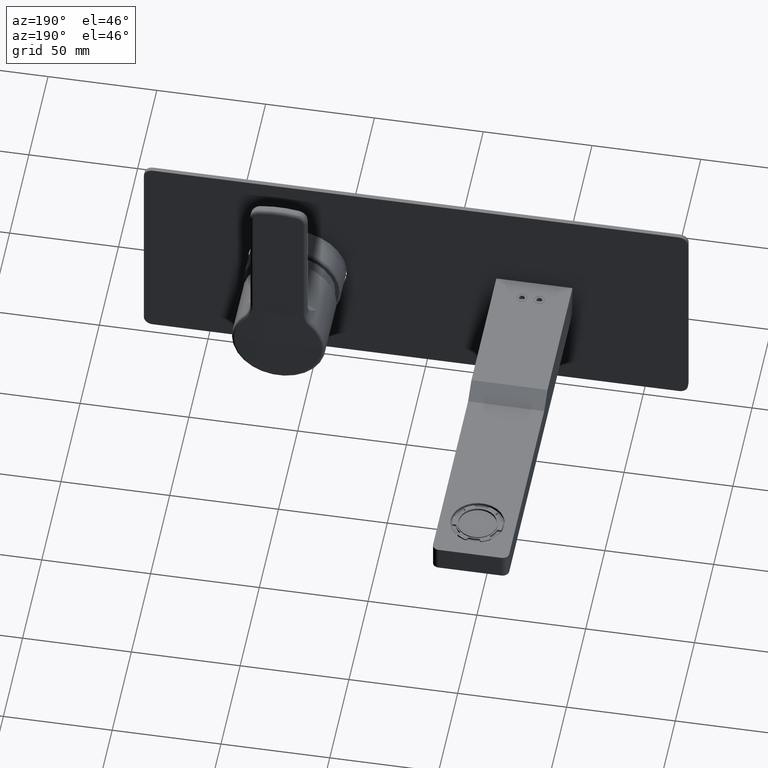
[diagram: clean part render]
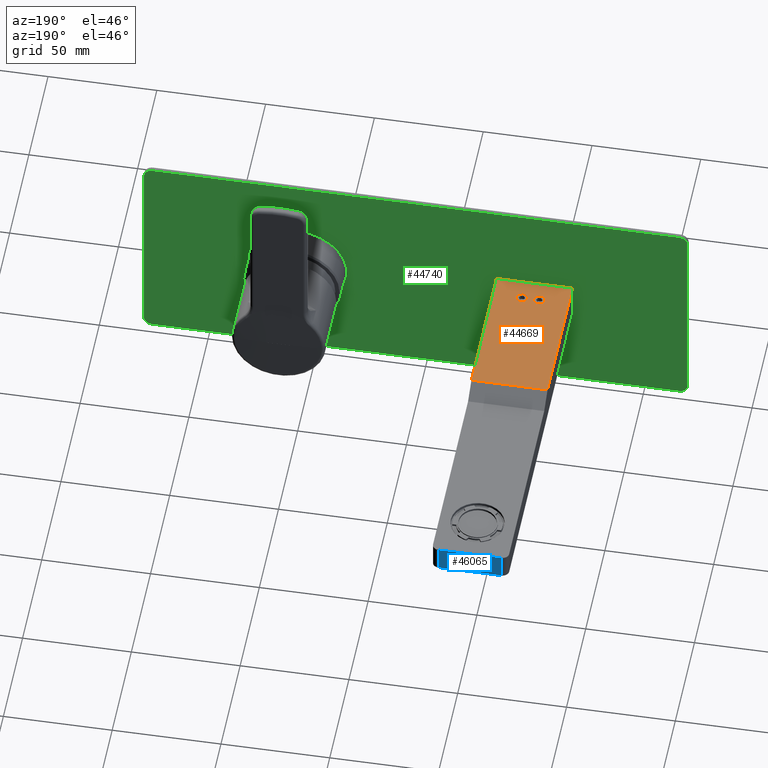
[diagram: same view with three faces highlighted in distinct colors, each labeled with its STEP entity id]
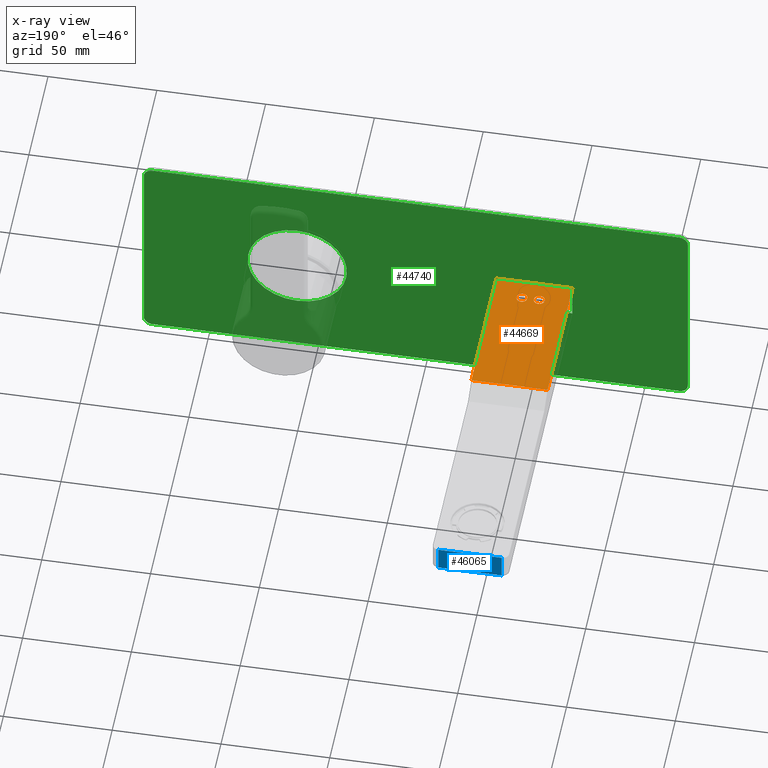
[diagram: x-ray of the same camera — body ghosted, the three highlighted faces saturated]
A machine part, auxiliary view with three faces highlighted in distinct colors.
The next image is the same camera in x-ray (body ghosted, the three faces saturated) — at least one of them is partly hidden behind the body in this view.
Their STEP definitions:

[orange] entity #44669 — the highlighted planar face has unit normal (0, 0, -1).
#42386=DIRECTION('',(0.E0,1.E0,0.E0));
#42387=VECTOR('',#42386,6.5E1);
#42388=CARTESIAN_POINT('',(-1.75E1,5.E1,8.25E0));
#42389=LINE('',#42388,#42387);
#42390=DIRECTION('',(1.E0,0.E0,0.E0));
#42391=VECTOR('',#42390,3.5E1);
#42392=CARTESIAN_POINT('',(-1.75E1,1.15E2,8.25E0));
#42393=LINE('',#42392,#42391);
#42394=DIRECTION('',(0.E0,-1.E0,0.E0));
#42395=VECTOR('',#42394,6.5E1);
#42396=CARTESIAN_POINT('',(1.75E1,1.15E2,8.25E0));
#42397=LINE('',#42396,#42395);
#42398=CARTESIAN_POINT('',(4.E0,6.E1,8.25E0));
#42399=DIRECTION('',(0.E0,0.E0,1.E0));
#42400=DIRECTION('',(-1.E0,0.E0,0.E0));
#42401=AXIS2_PLACEMENT_3D('',#42398,#42399,#42400);
#42403=CARTESIAN_POINT('',(4.E0,6.E1,8.25E0));
#42404=DIRECTION('',(0.E0,0.E0,1.E0));
#42405=DIRECTION('',(1.E0,0.E0,0.E0));
#42406=AXIS2_PLACEMENT_3D('',#42403,#42404,#42405);
#42408=CARTESIAN_POINT('',(-4.E0,6.E1,8.25E0));
#42409=DIRECTION('',(0.E0,0.E0,-1.E0));
#42410=DIRECTION('',(1.E0,0.E0,0.E0));
#42411=AXIS2_PLACEMENT_3D('',#42408,#42409,#42410);
#42413=CARTESIAN_POINT('',(-4.E0,6.E1,8.25E0));
#42414=DIRECTION('',(0.E0,0.E0,-1.E0));
#42415=DIRECTION('',(-1.E0,0.E0,0.E0));
#42416=AXIS2_PLACEMENT_3D('',#42413,#42414,#42415);
#42476=DIRECTION('',(1.E0,0.E0,0.E0));
#42477=VECTOR('',#42476,3.5E1);
#42478=CARTESIAN_POINT('',(-1.75E1,5.E1,8.25E0));
#42479=LINE('',#42478,#42477);
#44169=CARTESIAN_POINT('',(1.5E0,6.E1,8.25E0));
#44170=CARTESIAN_POINT('',(6.5E0,6.E1,8.25E0));
#44171=VERTEX_POINT('',#44169);
#44172=VERTEX_POINT('',#44170);
#44189=CARTESIAN_POINT('',(-1.5E0,6.E1,8.25E0));
#44190=CARTESIAN_POINT('',(-6.5E0,6.E1,8.25E0));
#44191=VERTEX_POINT('',#44189);
#44192=VERTEX_POINT('',#44190);
#44217=CARTESIAN_POINT('',(-1.75E1,1.15E2,8.25E0));
#44218=CARTESIAN_POINT('',(1.75E1,1.15E2,8.25E0));
#44219=VERTEX_POINT('',#44217);
#44220=VERTEX_POINT('',#44218);
#44271=CARTESIAN_POINT('',(-1.75E1,5.E1,8.25E0));
#44272=CARTESIAN_POINT('',(1.75E1,5.E1,8.25E0));
#44273=VERTEX_POINT('',#44271);
#44274=VERTEX_POINT('',#44272);
#44644=CARTESIAN_POINT('',(0.E0,5.E1,8.25E0));
#44645=DIRECTION('',(0.E0,0.E0,-1.E0));
#44646=DIRECTION('',(1.E0,0.E0,0.E0));
#44647=AXIS2_PLACEMENT_3D('',#44644,#44645,#44646);
#44648=PLANE('',#44647);
#44650=ORIENTED_EDGE('',*,*,#44649,.T.);
#44652=ORIENTED_EDGE('',*,*,#44651,.T.);
#44654=ORIENTED_EDGE('',*,*,#44653,.T.);
#44656=ORIENTED_EDGE('',*,*,#44655,.F.);
#44657=EDGE_LOOP('',(#44650,#44652,#44654,#44656));
#44658=FACE_OUTER_BOUND('',#44657,.F.);
#44659=ORIENTED_EDGE('',*,*,#44590,.T.);
#44660=ORIENTED_EDGE('',*,*,#44612,.T.);
#44661=EDGE_LOOP('',(#44659,#44660));
#44662=FACE_BOUND('',#44661,.F.);
#44664=ORIENTED_EDGE('',*,*,#44663,.F.);
#44666=ORIENTED_EDGE('',*,*,#44665,.F.);
#44667=EDGE_LOOP('',(#44664,#44666));
#44668=FACE_BOUND('',#44667,.F.);
#44669=ADVANCED_FACE('',(#44658,#44662,#44668),#44648,.F.);
#42402=CIRCLE('',#42401,2.5E0);
#42407=CIRCLE('',#42406,2.5E0);
#42412=CIRCLE('',#42411,2.5E0);
#42417=CIRCLE('',#42416,2.5E0);
#44590=EDGE_CURVE('',#44171,#44172,#42402,.T.);
#44612=EDGE_CURVE('',#44172,#44171,#42407,.T.);
#44649=EDGE_CURVE('',#44273,#44219,#42389,.T.);
#44651=EDGE_CURVE('',#44219,#44220,#42393,.T.);
#44653=EDGE_CURVE('',#44220,#44274,#42397,.T.);
#44655=EDGE_CURVE('',#44273,#44274,#42479,.T.);
#44663=EDGE_CURVE('',#44191,#44192,#42412,.T.);
#44665=EDGE_CURVE('',#44192,#44191,#42417,.T.);

[blue] entity #46065 — the highlighted planar face has unit normal (0, 1, 0).
#43453=DIRECTION('',(0.E0,0.E0,1.E0));
#43454=VECTOR('',#43453,1.15E1);
#43455=CARTESIAN_POINT('',(1.45E1,2.18E2,-8.25E0));
#43456=LINE('',#43455,#43454);
#43457=DIRECTION('',(1.E0,0.E0,0.E0));
#43458=VECTOR('',#43457,2.9E1);
#43459=CARTESIAN_POINT('',(-1.45E1,2.18E2,3.25E0));
#43460=LINE('',#43459,#43458);
#43461=DIRECTION('',(0.E0,0.E0,1.E0));
#43462=VECTOR('',#43461,1.15E1);
#43463=CARTESIAN_POINT('',(-1.45E1,2.18E2,-8.25E0));
#43464=LINE('',#43463,#43462);
#43474=DIRECTION('',(1.E0,0.E0,0.E0));
#43475=VECTOR('',#43474,2.9E1);
#43476=CARTESIAN_POINT('',(-1.45E1,2.18E2,-8.25E0));
#43477=LINE('',#43476,#43475);
#44173=CARTESIAN_POINT('',(1.45E1,2.18E2,-8.25E0));
#44174=CARTESIAN_POINT('',(1.45E1,2.18E2,3.25E0));
#44175=VERTEX_POINT('',#44173);
#44176=VERTEX_POINT('',#44174);
#44185=CARTESIAN_POINT('',(-1.45E1,2.18E2,-8.25E0));
#44186=VERTEX_POINT('',#44185);
#44187=CARTESIAN_POINT('',(-1.45E1,2.18E2,3.25E0));
#44188=VERTEX_POINT('',#44187);
#46052=CARTESIAN_POINT('',(-1.75E1,2.18E2,8.25E0));
#46053=DIRECTION('',(0.E0,1.E0,0.E0));
#46054=DIRECTION('',(1.E0,0.E0,0.E0));
#46055=AXIS2_PLACEMENT_3D('',#46052,#46053,#46054);
#46056=PLANE('',#46055);
#46057=ORIENTED_EDGE('',*,*,#46036,.T.);
#46058=ORIENTED_EDGE('',*,*,#46013,.F.);
#46060=ORIENTED_EDGE('',*,*,#46059,.F.);
#46062=ORIENTED_EDGE('',*,*,#46061,.T.);
#46063=EDGE_LOOP('',(#46057,#46058,#46060,#46062));
#46064=FACE_OUTER_BOUND('',#46063,.F.);
#46065=ADVANCED_FACE('',(#46064),#46056,.T.);
#46013=EDGE_CURVE('',#44188,#44176,#43460,.T.);
#46036=EDGE_CURVE('',#44175,#44176,#43456,.T.);
#46059=EDGE_CURVE('',#44186,#44188,#43464,.T.);
#46061=EDGE_CURVE('',#44186,#44175,#43477,.T.);

[green] entity #44740 — the highlighted planar face has unit normal (0, 1, 0).
#42430=CARTESIAN_POINT('',(-6.65E1,5.E1,-4.6E1));
#42431=DIRECTION('',(0.E0,1.E0,0.E0));
#42432=DIRECTION('',(0.E0,0.E0,-1.E0));
#42433=AXIS2_PLACEMENT_3D('',#42430,#42431,#42432);
#42435=DIRECTION('',(-1.E0,0.E0,0.E0));
#42436=VECTOR('',#42435,2.42E2);
#42437=CARTESIAN_POINT('',(1.755E2,5.E1,-5.E1));
#42438=LINE('',#42437,#42436);
#42439=CARTESIAN_POINT('',(1.755E2,5.E1,-4.6E1));
#42440=DIRECTION('',(0.E0,1.E0,0.E0));
#42441=DIRECTION('',(1.E0,0.E0,0.E0));
#42442=AXIS2_PLACEMENT_3D('',#42439,#42440,#42441);
#42444=DIRECTION('',(0.E0,0.E0,-1.E0));
#42445=VECTOR('',#42444,9.2E1);
#42446=CARTESIAN_POINT('',(1.795E2,5.E1,4.6E1));
#42447=LINE('',#42446,#42445);
#42448=CARTESIAN_POINT('',(1.755E2,5.E1,4.6E1));
#42449=DIRECTION('',(0.E0,1.E0,0.E0));
#42450=DIRECTION('',(0.E0,0.E0,1.E0));
#42451=AXIS2_PLACEMENT_3D('',#42448,#42449,#42450);
#42453=DIRECTION('',(1.E0,0.E0,0.E0));
#42454=VECTOR('',#42453,2.42E2);
#42455=CARTESIAN_POINT('',(-6.65E1,5.E1,5.E1));
#42456=LINE('',#42455,#42454);
#42457=CARTESIAN_POINT('',(-6.65E1,5.E1,4.6E1));
#42458=DIRECTION('',(0.E0,1.E0,0.E0));
#42459=DIRECTION('',(-1.E0,0.E0,0.E0));
#42460=AXIS2_PLACEMENT_3D('',#42457,#42458,#42459);
#42462=DIRECTION('',(0.E0,0.E0,1.E0));
#42463=VECTOR('',#42462,9.2E1);
#42464=CARTESIAN_POINT('',(-7.05E1,5.E1,-4.6E1));
#42465=LINE('',#42464,#42463);
#42466=CARTESIAN_POINT('',(1.09E2,5.E1,0.E0));
#42467=DIRECTION('',(0.E0,-1.E0,0.E0));
#42468=DIRECTION('',(0.E0,0.E0,-1.E0));
#42469=AXIS2_PLACEMENT_3D('',#42466,#42467,#42468);
#42471=CARTESIAN_POINT('',(1.09E2,5.E1,0.E0));
#42472=DIRECTION('',(0.E0,-1.E0,0.E0));
#42473=DIRECTION('',(0.E0,0.E0,1.E0));
#42474=AXIS2_PLACEMENT_3D('',#42471,#42472,#42473);
#42476=DIRECTION('',(1.E0,0.E0,0.E0));
#42477=VECTOR('',#42476,3.5E1);
#42478=CARTESIAN_POINT('',(-1.75E1,5.E1,8.25E0));
#42479=LINE('',#42478,#42477);
#42480=DIRECTION('',(0.E0,0.E0,-1.E0));
#42481=VECTOR('',#42480,1.65E1);
#42482=CARTESIAN_POINT('',(1.75E1,5.E1,8.25E0));
#42483=LINE('',#42482,#42481);
#42484=DIRECTION('',(1.E0,0.E0,0.E0));
#42485=VECTOR('',#42484,3.5E1);
#42486=CARTESIAN_POINT('',(-1.75E1,5.E1,-8.25E0));
#42487=LINE('',#42486,#42485);
#42488=DIRECTION('',(0.E0,0.E0,-1.E0));
#42489=VECTOR('',#42488,1.65E1);
#42490=CARTESIAN_POINT('',(-1.75E1,5.E1,8.25E0));
#42491=LINE('',#42490,#42489);
#44129=CARTESIAN_POINT('',(1.09E2,5.E1,-2.28E1));
#44130=CARTESIAN_POINT('',(1.09E2,5.E1,2.28E1));
#44131=VERTEX_POINT('',#44129);
#44132=VERTEX_POINT('',#44130);
#44137=CARTESIAN_POINT('',(-6.65E1,5.E1,-5.E1));
#44138=VERTEX_POINT('',#44137);
#44139=CARTESIAN_POINT('',(-7.05E1,5.E1,-4.6E1));
#44140=VERTEX_POINT('',#44139);
#44145=CARTESIAN_POINT('',(-7.05E1,5.E1,4.6E1));
#44146=VERTEX_POINT('',#44145);
#44147=CARTESIAN_POINT('',(-6.65E1,5.E1,5.E1));
#44148=VERTEX_POINT('',#44147);
#44153=CARTESIAN_POINT('',(1.755E2,5.E1,5.E1));
#44154=VERTEX_POINT('',#44153);
#44155=CARTESIAN_POINT('',(1.795E2,5.E1,4.6E1));
#44156=VERTEX_POINT('',#44155);
#44161=CARTESIAN_POINT('',(1.795E2,5.E1,-4.6E1));
#44162=VERTEX_POINT('',#44161);
#44163=CARTESIAN_POINT('',(1.755E2,5.E1,-5.E1));
#44164=VERTEX_POINT('',#44163);
#44271=CARTESIAN_POINT('',(-1.75E1,5.E1,8.25E0));
#44272=CARTESIAN_POINT('',(1.75E1,5.E1,8.25E0));
#44273=VERTEX_POINT('',#44271);
#44274=VERTEX_POINT('',#44272);
#44275=CARTESIAN_POINT('',(-1.75E1,5.E1,-8.25E0));
#44276=CARTESIAN_POINT('',(1.75E1,5.E1,-8.25E0));
#44277=VERTEX_POINT('',#44275);
#44278=VERTEX_POINT('',#44276);
#44703=CARTESIAN_POINT('',(5.45E1,5.E1,0.E0));
#44704=DIRECTION('',(0.E0,1.E0,0.E0));
#44705=DIRECTION('',(0.E0,0.E0,-1.E0));
#44706=AXIS2_PLACEMENT_3D('',#44703,#44704,#44705);
#44707=PLANE('',#44706);
#44709=ORIENTED_EDGE('',*,*,#44708,.F.);
#44711=ORIENTED_EDGE('',*,*,#44710,.F.);
#44713=ORIENTED_EDGE('',*,*,#44712,.F.);
#44715=ORIENTED_EDGE('',*,*,#44714,.F.);
#44717=ORIENTED_EDGE('',*,*,#44716,.F.);
#44719=ORIENTED_EDGE('',*,*,#44718,.F.);
#44721=ORIENTED_EDGE('',*,*,#44720,.F.);
#44723=ORIENTED_EDGE('',*,*,#44722,.F.);
#44724=EDGE_LOOP('',(#44709,#44711,#44713,#44715,#44717,#44719,#44721,#44723));
#44725=FACE_OUTER_BOUND('',#44724,.F.);
#44727=ORIENTED_EDGE('',*,*,#44726,.F.);
#44729=ORIENTED_EDGE('',*,*,#44728,.F.);
#44730=EDGE_LOOP('',(#44727,#44729));
#44731=FACE_BOUND('',#44730,.F.);
#44732=ORIENTED_EDGE('',*,*,#44655,.T.);
#44734=ORIENTED_EDGE('',*,*,#44733,.T.);
#44736=ORIENTED_EDGE('',*,*,#44735,.F.);
#44737=ORIENTED_EDGE('',*,*,#44682,.F.);
#44738=EDGE_LOOP('',(#44732,#44734,#44736,#44737));
#44739=FACE_BOUND('',#44738,.F.);
#44740=ADVANCED_FACE('',(#44725,#44731,#44739),#44707,.T.);
#42434=CIRCLE('',#42433,4.E0);
#42443=CIRCLE('',#42442,4.E0);
#42452=CIRCLE('',#42451,4.E0);
#42461=CIRCLE('',#42460,4.E0);
#42470=CIRCLE('',#42469,2.28E1);
#42475=CIRCLE('',#42474,2.28E1);
#44655=EDGE_CURVE('',#44273,#44274,#42479,.T.);
#44682=EDGE_CURVE('',#44273,#44277,#42491,.T.);
#44708=EDGE_CURVE('',#44138,#44140,#42434,.T.);
#44710=EDGE_CURVE('',#44164,#44138,#42438,.T.);
#44712=EDGE_CURVE('',#44162,#44164,#42443,.T.);
#44714=EDGE_CURVE('',#44156,#44162,#42447,.T.);
#44716=EDGE_CURVE('',#44154,#44156,#42452,.T.);
#44718=EDGE_CURVE('',#44148,#44154,#42456,.T.);
#44720=EDGE_CURVE('',#44146,#44148,#42461,.T.);
#44722=EDGE_CURVE('',#44140,#44146,#42465,.T.);
#44726=EDGE_CURVE('',#44131,#44132,#42470,.T.);
#44728=EDGE_CURVE('',#44132,#44131,#42475,.T.);
#44733=EDGE_CURVE('',#44274,#44278,#42483,.T.);
#44735=EDGE_CURVE('',#44277,#44278,#42487,.T.);